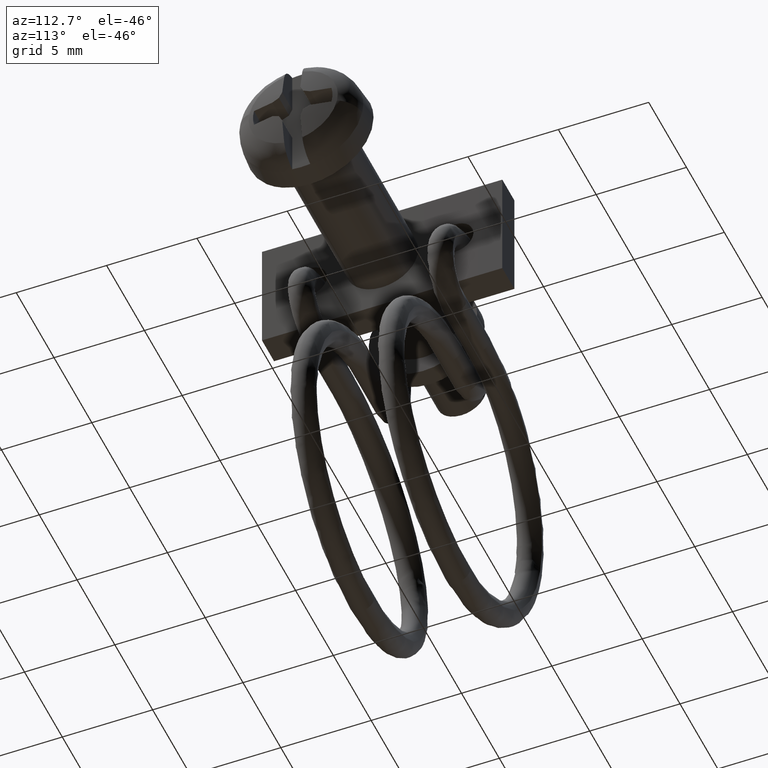
[diagram: clean part render]
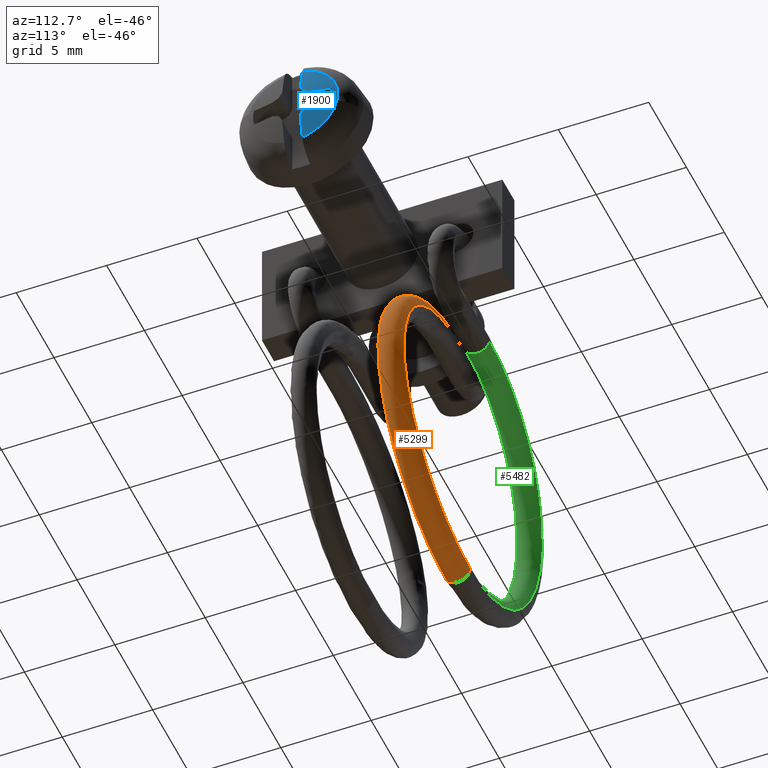
[diagram: same view with three faces highlighted in distinct colors, each labeled with its STEP entity id]
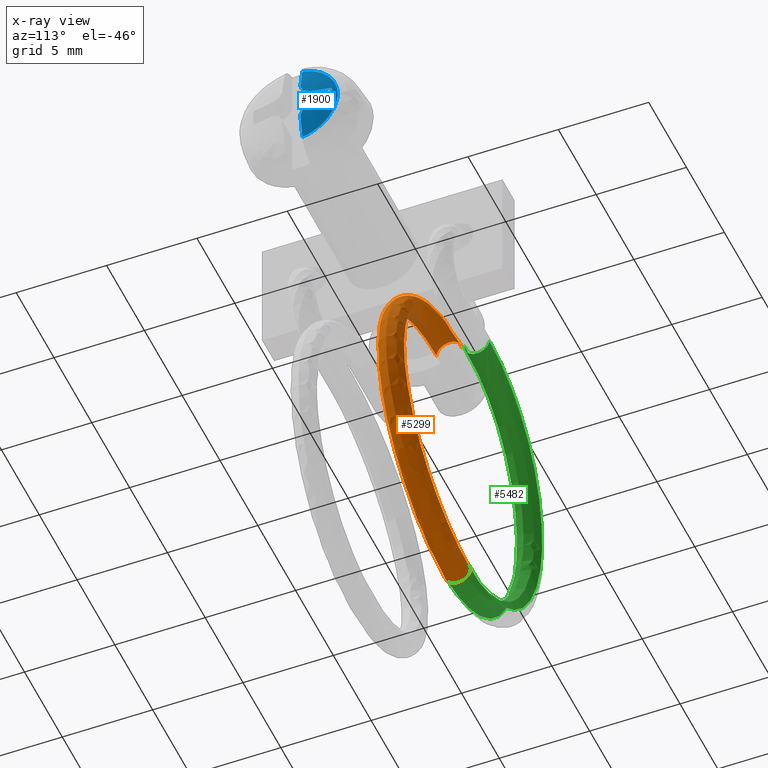
[diagram: x-ray of the same camera — body ghosted, the three highlighted faces saturated]
A machine part, auxiliary view with three faces highlighted in distinct colors.
The next image is the same camera in x-ray (body ghosted, the three faces saturated) — at least one of them is partly hidden behind the body in this view.
Their STEP definitions:

[orange] entity #5299 — the highlighted face is a freeform B-spline surface patch.
#4891=CARTESIAN_POINT('',(-13.150000000000000,2.227171952736012,-3.450939132887910));
#4892=VERTEX_POINT('',#4891);
#4898=CARTESIAN_POINT('',(-13.150000000000000,2.891492417733260,-4.130448840946523));
#4899=VERTEX_POINT('',#4898);
#4900=CARTESIAN_POINT('',(-13.150000000000000,2.891492417733260,-4.130448840946523));
#4901=CARTESIAN_POINT('',(-13.150000000000000,2.886374261863371,-3.947254674042755));
#4902=CARTESIAN_POINT('',(-13.150000000000000,2.805876010664394,-3.767293357503350));
#4903=CARTESIAN_POINT('',(-13.150000000000000,2.552891667518433,-3.528045533171063));
#4904=CARTESIAN_POINT('',(-13.150000000000000,2.391741750787533,-3.459743892525836));
#4905=CARTESIAN_POINT('',(-13.150000000000000,2.227171952736012,-3.450939132887910));
#4906=B_SPLINE_CURVE_WITH_KNOTS('',3,(#4900,#4901,#4902,#4903,#4904,#4905),.UNSPECIFIED.,.F.,.U.,(4,2,4),(0.0,0.125000000000000,0.237495099721431),.UNSPECIFIED.);
#4907=EDGE_CURVE('',#4899,#4892,#4906,.T.);
#4952=CARTESIAN_POINT('',(-13.150000000000000,1.492038592585606,-4.169551159031253));
#4953=VERTEX_POINT('',#4952);
#4963=CARTESIAN_POINT('',(-13.150000000000000,2.227171952736012,-3.450939132887910));
#4964=CARTESIAN_POINT('',(-13.150000000000000,2.208878394085318,-3.449961529167624));
#4965=CARTESIAN_POINT('',(-13.150000000000000,2.190542577870351,-3.449719095212407));
#4966=CARTESIAN_POINT('',(-13.150000000000000,1.989028180289544,-3.455355818465185));
#4967=CARTESIAN_POINT('',(-13.150000000000000,1.809074819739752,-3.535862254391557));
#4968=CARTESIAN_POINT('',(-13.150000000000000,1.557245563047675,-3.802183264355214));
#4969=CARTESIAN_POINT('',(-13.150000000000000,1.486920389340897,-3.986357878164590));
#4970=CARTESIAN_POINT('',(-13.150000000000000,1.492038592585606,-4.169551159031253));
#4971=B_SPLINE_CURVE_WITH_KNOTS('',3,(#4963,#4964,#4965,#4966,#4967,#4968,#4969,#4970),.UNSPECIFIED.,.F.,.U.,(4,2,2,4),(0.237495099721431,0.250000000000000,0.375000000000000,0.500000000000000),.UNSPECIFIED.);
#4972=EDGE_CURVE('',#4892,#4953,#4971,.T.);
#5105=CARTESIAN_POINT('',(-13.150000000000000,1.950273087444880,-20.569551159053230));
#5106=VERTEX_POINT('',#5105);
#5107=CARTESIAN_POINT('',(-13.150000000000000,1.950273087444880,-20.569551159053230));
#5108=CARTESIAN_POINT('',(-10.998757554054830,1.950273087444880,-20.569551159053230));
#5109=CARTESIAN_POINT('',(-8.871056766925172,1.925600556636071,-19.686532728319069));
#5110=CARTESIAN_POINT('',(-5.834784287587045,1.840798670829262,-16.651512573826128));
#5111=CARTESIAN_POINT('',(-4.950434494428650,1.781190440886435,-14.518161675678490));
#5112=CARTESIAN_POINT('',(-4.949565841133940,1.661213939582098,-10.224258349555040));
#5113=CARTESIAN_POINT('',(-5.833094312167060,1.601585964081216,-8.090200767047410));
#5114=CARTESIAN_POINT('',(-8.869227590561900,1.516736486775311,-5.053477334872945));
#5115=CARTESIAN_POINT('',(-10.997641019781749,1.492038592585606,-4.169551159031253));
#5116=CARTESIAN_POINT('',(-13.150000000000000,1.492038592585606,-4.169551159031253));
#5117=B_SPLINE_CURVE_WITH_KNOTS('',3,(#5107,#5108,#5109,#5110,#5111,#5112,#5113,#5114,#5115,#5116),.UNSPECIFIED.,.F.,.U.,(4,2,2,2,4),(0.257365743412340,0.300619619535867,0.343873495659394,0.387127371782920,0.430381247906447),.UNSPECIFIED.);
#5118=EDGE_CURVE('',#5106,#4953,#5117,.T.);
#5122=CARTESIAN_POINT('',(-13.150000000000000,3.349726912581044,-20.530448840968511));
#5123=VERTEX_POINT('',#5122);
#5124=CARTESIAN_POINT('',(-13.150000000000000,3.349726912581044,-20.530448840968511));
#5125=CARTESIAN_POINT('',(-10.998757554054830,3.349726912581044,-20.530448840968511));
#5126=CARTESIAN_POINT('',(-8.871056766925172,3.325054381772621,-19.647430410234339));
#5127=CARTESIAN_POINT('',(-5.834784287587046,3.240252495968404,-16.612410255741430));
#5128=CARTESIAN_POINT('',(-4.950434494428650,3.180644266026603,-14.479059357592851));
#5129=CARTESIAN_POINT('',(-4.949565841133940,3.060667764725743,-10.185156031471230));
#5130=CARTESIAN_POINT('',(-5.833094312167060,3.001039789226474,-8.051098448962673));
#5131=CARTESIAN_POINT('',(-8.869227590561900,2.916190311921997,-5.014375016788211));
#5132=CARTESIAN_POINT('',(-10.997641019781749,2.891492417733260,-4.130448840946523));
#5133=CARTESIAN_POINT('',(-13.150000000000000,2.891492417733260,-4.130448840946523));
#5134=B_SPLINE_CURVE_WITH_KNOTS('',3,(#5124,#5125,#5126,#5127,#5128,#5129,#5130,#5131,#5132,#5133),.UNSPECIFIED.,.F.,.U.,(4,2,2,2,4),(0.257365743412340,0.300619619535867,0.343873495659394,0.387127371782920,0.430381247906447),.UNSPECIFIED.);
#5135=EDGE_CURVE('',#5123,#4899,#5134,.T.);
#5153=CARTESIAN_POINT('',(-13.407456462064900,3.349112684961753,-20.508465918584580));
#5154=CARTESIAN_POINT('',(-13.413459367899140,3.360367985171550,-20.698822007266440));
#5155=CARTESIAN_POINT('',(-13.419493968865600,3.289557823139928,-20.892477831455409));
#5156=CARTESIAN_POINT('',(-13.427819832349140,3.032917784529797,-21.164103428817938));
#5157=CARTESIAN_POINT('',(-13.432571933917171,2.671658248021521,-21.325138648614221));
#5158=CARTESIAN_POINT('',(-13.427819832349140,2.301970355717410,-21.184526924292420));
#5159=CARTESIAN_POINT('',(-13.419493968865600,2.030563515777680,-20.927655552212428));
#5160=CARTESIAN_POINT('',(-13.413459367899140,1.949050349337072,-20.738255813601121));
#5161=CARTESIAN_POINT('',(-13.407456462064911,1.949658859814104,-20.547568236669491));
#5162=CARTESIAN_POINT('',(-13.321637641376601,3.349112684961753,-20.508465918584580));
#5163=CARTESIAN_POINT('',(-13.325639578599430,3.360367985171550,-20.698822007266440));
#5164=CARTESIAN_POINT('',(-13.329662645910400,3.289557823139928,-20.892477831455409));
#5165=CARTESIAN_POINT('',(-13.335213221566089,3.032917784529797,-21.164103428817938));
#5166=CARTESIAN_POINT('',(-13.338381289278111,2.671658248021521,-21.325138648614221));
#5167=CARTESIAN_POINT('',(-13.335213221566089,2.301970355717410,-21.184526924292420));
#5168=CARTESIAN_POINT('',(-13.329662645910400,2.030563515777680,-20.927655552212428));
#5169=CARTESIAN_POINT('',(-13.325639578599430,1.949050349337072,-20.738255813601121));
#5170=CARTESIAN_POINT('',(-13.321637641376610,1.949658859814104,-20.547568236669491));
#5171=CARTESIAN_POINT('',(-13.235818820688300,3.349112684961753,-20.508465918584580));
#5172=CARTESIAN_POINT('',(-13.237819789299710,3.360367985171550,-20.698822007266440));
#5173=CARTESIAN_POINT('',(-13.239831322955199,3.289557823139928,-20.892477831455409));
#5174=CARTESIAN_POINT('',(-13.242606610783049,3.032917784529797,-21.164103428817938));
#5175=CARTESIAN_POINT('',(-13.244190644639049,2.671658248021521,-21.325138648614221));
#5176=CARTESIAN_POINT('',(-13.242606610783049,2.301970355717410,-21.184526924292420));
#5177=CARTESIAN_POINT('',(-13.239831322955199,2.030563515777680,-20.927655552212428));
#5178=CARTESIAN_POINT('',(-13.237819789299721,1.949050349337072,-20.738255813601121));
#5179=CARTESIAN_POINT('',(-13.235818820688300,1.949658859814104,-20.547568236669491));
#5180=CARTESIAN_POINT('',(-11.004529482792520,3.349112684961753,-20.508465918584580));
#5181=CARTESIAN_POINT('',(-10.954505267507219,3.360367985171550,-20.698822007266440));
#5182=CARTESIAN_POINT('',(-10.904216926120011,3.289557823139928,-20.892477831455409));
#5183=CARTESIAN_POINT('',(-10.834834730423861,3.032917784529797,-21.164103428817938));
#5184=CARTESIAN_POINT('',(-10.795233884023650,2.671658248021521,-21.325138648614221));
#5185=CARTESIAN_POINT('',(-10.834834730423880,2.301970355717410,-21.184526924292420));
#5186=CARTESIAN_POINT('',(-10.904216926120000,2.030563515777680,-20.927655552212428));
#5187=CARTESIAN_POINT('',(-10.954505267507180,1.949050349337072,-20.738255813601121));
#5188=CARTESIAN_POINT('',(-11.004529482792460,1.949658859814104,-20.547568236669491));
#5189=CARTESIAN_POINT('',(-8.882536251944119,3.324506359896877,-19.627816960743989));
#5190=CARTESIAN_POINT('',(-8.783045725284772,3.335187867431717,-19.797637275764981));
#5191=CARTESIAN_POINT('',(-8.683029892135149,3.263800883119729,-19.970648898134289));
#5192=CARTESIAN_POINT('',(-8.545039297949831,3.006365010024064,-20.213791948414261));
#5193=CARTESIAN_POINT('',(-8.466279260603969,2.644651239991649,-20.358570361105940));
#5194=CARTESIAN_POINT('',(-8.545039297949831,2.275417581211496,-20.234215443891760));
#5195=CARTESIAN_POINT('',(-8.683029892135126,2.004806575757965,-20.005826618891231));
#5196=CARTESIAN_POINT('',(-8.783045725284710,1.923870231597455,-19.837071082099641));
#5197=CARTESIAN_POINT('',(-8.882536251944021,1.925052534749458,-19.666919278828900));
#5198=CARTESIAN_POINT('',(-5.854405135316153,3.239931859119076,-16.600934811017780));
#5199=CARTESIAN_POINT('',(-5.684354957032952,3.248642663576313,-16.700224577076970));
#5200=CARTESIAN_POINT('',(-5.513406919773905,3.175274570944037,-16.802333251648790));
#5201=CARTESIAN_POINT('',(-5.277552050673074,2.915105387473203,-16.947652391599259));
#5202=CARTESIAN_POINT('',(-5.142934626854648,2.551831542797076,-17.036596456470839));
#5203=CARTESIAN_POINT('',(-5.277552050673074,2.184157958661003,-16.968075887070750));
#5204=CARTESIAN_POINT('',(-5.513406919773866,1.916280263581304,-16.837510972405870));
#5205=CARTESIAN_POINT('',(-5.684354957032840,1.837325027741617,-16.739658383411541));
#5206=CARTESIAN_POINT('',(-5.854405135315984,1.840478033971192,-16.640037129102581));
#5207=CARTESIAN_POINT('',(-4.972424831887433,3.180483385417947,-14.473301514720241));
#5208=CARTESIAN_POINT('',(-4.781838734028359,3.187809612710526,-14.523037906350520));
#5209=CARTESIAN_POINT('',(-4.590246348261257,3.113049632395119,-14.575331566422401));
#5210=CARTESIAN_POINT('',(-4.325908729698472,2.850960078895529,-14.651921553849320));
#5211=CARTESIAN_POINT('',(-4.175034383269749,2.486590156503425,-14.701637505733521));
#5212=CARTESIAN_POINT('',(-4.325908729698472,2.120012650082770,-14.672345049323811));
#5213=CARTESIAN_POINT('',(-4.590246348261213,1.854055325032878,-14.610509287181300));
#5214=CARTESIAN_POINT('',(-4.781838734028232,1.776491976876554,-14.562471712684930));
#5215=CARTESIAN_POINT('',(-4.972424831887245,1.781029560270500,-14.512403832806051));
#5216=CARTESIAN_POINT('',(-4.971558506408358,3.060828396938796,-10.190904983557751));
#5217=CARTESIAN_POINT('',(-4.780952233811572,3.065368133330045,-10.140914158439919));
#5218=CARTESIAN_POINT('',(-4.589339566779714,2.987806949537919,-10.092954045554301));
#5219=CARTESIAN_POINT('',(-4.324973966418311,2.721852610634513,-10.031225156222661));
#5220=CARTESIAN_POINT('',(-4.174083648988911,2.355276808598827,-10.001993698946810));
#5221=CARTESIAN_POINT('',(-4.324973966418311,1.990905181822503,-10.051648651697130));
#5222=CARTESIAN_POINT('',(-4.589339566779670,1.728812642175660,-10.128131766309380));
#5223=CARTESIAN_POINT('',(-4.780952233811444,1.654050497495062,-10.180347964774580));
#5224=CARTESIAN_POINT('',(-4.971558506408170,1.661374571790935,-10.230007301641400));
#5225=CARTESIAN_POINT('',(-5.852719689894633,3.001360230520279,-8.062566894021320));
#5226=CARTESIAN_POINT('',(-5.682630250971067,3.004514931791820,-7.963006304486189));
#5227=CARTESIAN_POINT('',(-5.511642745776598,2.925561399944218,-7.865214700566357));
#5228=CARTESIAN_POINT('',(-5.275733423254031,2.657686055840975,-7.734733926255739));
#5229=CARTESIAN_POINT('',(-5.141084919395550,2.290013813556902,-7.666261381131901));
#5230=CARTESIAN_POINT('',(-5.275733423254031,1.926738627028403,-7.755157421730218));
#5231=CARTESIAN_POINT('',(-5.511642745776559,1.666567092581728,-7.900392421323319));
#5232=CARTESIAN_POINT('',(-5.682630250970953,1.593197295957356,-8.002440110820661));
#5233=CARTESIAN_POINT('',(-5.852719689894466,1.601906405372229,-8.101669212105961));
#5234=CARTESIAN_POINT('',(-8.880711981720346,2.916738265771655,-5.033986030834919));
#5235=CARTESIAN_POINT('',(-8.781178934477378,2.917921158692150,-4.863855335093149));
#5236=CARTESIAN_POINT('',(-8.681120356237187,2.836985407413621,-4.695121017284763));
#5237=CARTESIAN_POINT('',(-8.543070787189819,2.566375219951981,-4.466761467840396));
#5238=CARTESIAN_POINT('',(-8.464277089124520,2.197142028052337,-4.342423260047086));
#5239=CARTESIAN_POINT('',(-8.543070787189819,1.835427791139784,-4.487184963314870));
#5240=CARTESIAN_POINT('',(-8.681120356237164,1.577991100051604,-4.730298738041707));
#5241=CARTESIAN_POINT('',(-8.781178934477312,1.506603522857647,-4.903289141427578));
#5242=CARTESIAN_POINT('',(-8.880711981720246,1.517284440624388,-5.073088348919487));
#5243=CARTESIAN_POINT('',(-11.003415944649941,2.892106645375531,-4.152431763330446));
#5244=CARTESIAN_POINT('',(-10.953365762467900,2.892715155852611,-3.961744186398767));
#5245=CARTESIAN_POINT('',(-10.903051317079470,2.811201989411995,-3.772344447787390));
#5246=CARTESIAN_POINT('',(-10.833633106015650,2.539795149472221,-3.515473075707348));
#5247=CARTESIAN_POINT('',(-10.794011703348790,2.170107257168108,-3.374861351385534));
#5248=CARTESIAN_POINT('',(-10.833633106015650,1.808847720659834,-3.535896571181823));
#5249=CARTESIAN_POINT('',(-10.903051317079459,1.552207682049744,-3.807522168544334));
#5250=CARTESIAN_POINT('',(-10.953365762467870,1.481397520018126,-4.001177992733170));
#5251=CARTESIAN_POINT('',(-11.003415944649900,1.492652820227872,-4.191534081414988));
#5252=CARTESIAN_POINT('',(-13.235863362213999,2.892106645375531,-4.152431763330446));
#5253=CARTESIAN_POINT('',(-13.237865369501289,2.892715155852611,-3.961744186398767));
#5254=CARTESIAN_POINT('',(-13.239877947316820,2.811201989411995,-3.772344447787390));
#5255=CARTESIAN_POINT('',(-13.242654675759370,2.539795149472221,-3.515473075707353));
#5256=CARTESIAN_POINT('',(-13.244239531866050,2.170107257168108,-3.374861351385532));
#5257=CARTESIAN_POINT('',(-13.242654675759370,1.808847720659834,-3.535896571181823));
#5258=CARTESIAN_POINT('',(-13.239877947316820,1.552207682049744,-3.807522168544334));
#5259=CARTESIAN_POINT('',(-13.237865369501280,1.481397520018126,-4.001177992733170));
#5260=CARTESIAN_POINT('',(-13.235863362214010,1.492652820227872,-4.191534081414988));
#5261=CARTESIAN_POINT('',(-13.321726724428011,2.892106645375531,-4.152431763330446));
#5262=CARTESIAN_POINT('',(-13.325730739002569,2.892715155852611,-3.961744186398767));
#5263=CARTESIAN_POINT('',(-13.329755894633641,2.811201989411995,-3.772344447787390));
#5264=CARTESIAN_POINT('',(-13.335309351518751,2.539795149472221,-3.515473075707353));
#5265=CARTESIAN_POINT('',(-13.338479063732100,2.170107257168108,-3.374861351385532));
#5266=CARTESIAN_POINT('',(-13.335309351518751,1.808847720659834,-3.535896571181823));
#5267=CARTESIAN_POINT('',(-13.329755894633641,1.552207682049744,-3.807522168544334));
#5268=CARTESIAN_POINT('',(-13.325730739002580,1.481397520018126,-4.001177992733170));
#5269=CARTESIAN_POINT('',(-13.321726724428011,1.492652820227872,-4.191534081414988));
#5270=CARTESIAN_POINT('',(-13.407590086642010,2.892106645375531,-4.152431763330446));
#5271=CARTESIAN_POINT('',(-13.413596108503860,2.892715155852611,-3.961744186398767));
#5272=CARTESIAN_POINT('',(-13.419633841950469,2.811201989411995,-3.772344447787390));
#5273=CARTESIAN_POINT('',(-13.427964027278120,2.539795149472221,-3.515473075707353));
#5274=CARTESIAN_POINT('',(-13.432718595598150,2.170107257168108,-3.374861351385532));
#5275=CARTESIAN_POINT('',(-13.427964027278120,1.808847720659834,-3.535896571181823));
#5276=CARTESIAN_POINT('',(-13.419633841950469,1.552207682049744,-3.807522168544334));
#5277=CARTESIAN_POINT('',(-13.413596108503860,1.481397520018126,-4.001177992733170));
#5278=CARTESIAN_POINT('',(-13.407590086642021,1.492652820227872,-4.191534081414988));
#5279=B_SPLINE_SURFACE_WITH_KNOTS('',3,3,((#5153,#5162,#5171,#5180,#5189,#5198,#5207,#5216,#5225,#5234,#5243,#5252,#5261,#5270),(#5154,#5163,#5172,#5181,#5190,#5199,#5208,#5217,#5226,#5235,#5244,#5253,#5262,#5271),(#5155,#5164,#5173,#5182,#5191,#5200,#5209,#5218,#5227,#5236,#5245,#5254,#5263,#5272),(#5156,#5165,#5174,#5183,#5192,#5201,#5210,#5219,#5228,#5237,#5246,#5255,#5264,#5273),(#5157,#5166,#5175,#5184,#5193,#5202,#5211,#5220,#5229,#5238,#5247,#5256,#5265,#5274),(#5158,#5167,#5176,#5185,#5194,#5203,#5212,#5221,#5230,#5239,#5248,#5257,#5266,#5275),(#5159,#5168,#5177,#5186,#5195,#5204,#5213,#5222,#5231,#5240,#5249,#5258,#5267,#5276),(#5160,#5169,#5178,#5187,#5196,#5205,#5214,#5223,#5232,#5241,#5250,#5259,#5268,#5277),(#5161,#5170,#5179,#5188,#5197,#5206,#5215,#5224,#5233,#5242,#5251,#5260,#5269,#5278)),.UNSPECIFIED.,.F.,.F.,.U.,(4,2,1,2,4),(4,2,2,2,2,2,4),(0.0,0.572349326213570,1.122684876804601,1.673020427395633,2.245369753609015),(0.0,0.280341311438134,7.288874097391388,14.297406883344630,21.305939669297882,28.314472455251121,28.594813766689260),.UNSPECIFIED.);
#5280=ORIENTED_EDGE('',*,*,#5118,.F.);
#5281=CARTESIAN_POINT('',(-13.150000000000000,3.349726912581044,-20.530448840968511));
#5282=CARTESIAN_POINT('',(-13.150000000000000,3.354845394049101,-20.713636918306939));
#5283=CARTESIAN_POINT('',(-13.150000000000000,3.284520620769510,-20.897804043057690));
#5284=CARTESIAN_POINT('',(-13.150000000000000,3.032692183245477,-21.164109732405588));
#5285=CARTESIAN_POINT('',(-13.150000000000000,2.852739236392242,-21.244608431116639));
#5286=CARTESIAN_POINT('',(-13.150000000000000,2.486363081718415,-21.254845394052751));
#5287=CARTESIAN_POINT('',(-13.150000000000000,2.302195956969154,-21.184520620772549));
#5288=CARTESIAN_POINT('',(-13.150000000000000,2.035890267623361,-20.932692183246399));
#5289=CARTESIAN_POINT('',(-13.150000000000000,1.955391568912935,-20.752739236391651));
#5290=CARTESIAN_POINT('',(-13.150000000000000,1.950273087444880,-20.569551159053230));
#5291=B_SPLINE_CURVE_WITH_KNOTS('',3,(#5281,#5282,#5283,#5284,#5285,#5286,#5287,#5288,#5289,#5290),.UNSPECIFIED.,.F.,.U.,(4,2,2,2,4),(0.0,0.125000000000000,0.250000000000000,0.375000000000000,0.500000000000000),.UNSPECIFIED.);
#5292=EDGE_CURVE('',#5123,#5106,#5291,.T.);
#5293=ORIENTED_EDGE('',*,*,#5292,.F.);
#5294=ORIENTED_EDGE('',*,*,#5135,.T.);
#5295=ORIENTED_EDGE('',*,*,#4907,.T.);
#5296=ORIENTED_EDGE('',*,*,#4972,.T.);
#5297=EDGE_LOOP('',(#5280,#5293,#5294,#5295,#5296));
#5298=FACE_OUTER_BOUND('',#5297,.T.);
#5299=ADVANCED_FACE('',(#5298),#5279,.F.);

[blue] entity #1900 — the highlighted face is a freeform B-spline surface patch.
#1253=CARTESIAN_POINT('',(2.256508772695955,0.500999999999920,2.411165328157830));
#1254=VERTEX_POINT('',#1253);
#1278=CARTESIAN_POINT('',(2.256508772548493,2.419044500105618,-0.461457418157025));
#1279=VERTEX_POINT('',#1278);
#1280=CARTESIAN_POINT('',(2.256508772695955,0.500999999999920,2.411165328157830));
#1281=CARTESIAN_POINT('',(2.256508772691706,0.637645352537269,2.382782687184147));
#1282=CARTESIAN_POINT('',(2.256508772682502,0.906091230957764,2.302699490948710));
#1283=CARTESIAN_POINT('',(2.256508772668434,1.246772134804768,2.133950476584994));
#1284=CARTESIAN_POINT('',(2.256508772651380,1.599871326141201,1.889496030997040));
#1285=CARTESIAN_POINT('',(2.256508772632488,1.920366807436065,1.571360582312098));
#1286=CARTESIAN_POINT('',(2.256508772612825,2.171515438091608,1.185094313272269));
#1287=CARTESIAN_POINT('',(2.256508772597700,2.315737715116916,0.855598895952190));
#1288=CARTESIAN_POINT('',(2.256508772583846,2.413199593190964,0.530442383168246));
#1289=CARTESIAN_POINT('',(2.256508772566847,2.479665032065522,0.095271850295473));
#1290=CARTESIAN_POINT('',(2.256508772554835,2.458336214755378,-0.255826488186732));
#1291=CARTESIAN_POINT('',(2.256508772548493,2.419044500105618,-0.461457418157025));
#1292=B_SPLINE_CURVE_WITH_KNOTS('',3,(#1280,#1281,#1282,#1283,#1284,#1285,#1286,#1287,#1288,#1289,#1290,#1291),.UNSPECIFIED.,.F.,.U.,(4,1,1,1,1,1,1,1,1,4),(0.000000010237085,0.418686758017956,0.837384758448813,1.136453466059990,1.704686053450429,2.183177587573629,2.512153728120897,2.781315536685892,3.200011040748690,3.828048380252850),.UNSPECIFIED.);
#1293=EDGE_CURVE('',#1254,#1279,#1292,.T.);
#1344=CARTESIAN_POINT('',(2.256508772697755,0.500999999999920,-2.411165328158100));
#1345=VERTEX_POINT('',#1344);
#1346=CARTESIAN_POINT('',(2.256508772548493,2.419044500105618,-0.461457418157025));
#1347=CARTESIAN_POINT('',(2.256508772556717,2.385119262346324,-0.639483240486898));
#1348=CARTESIAN_POINT('',(2.256508772569973,2.304536275237548,-0.900836110271518));
#1349=CARTESIAN_POINT('',(2.256508772590386,2.128372703887221,-1.252431192861815));
#1350=CARTESIAN_POINT('',(2.256508772609894,1.925208929119595,-1.553777627583928));
#1351=CARTESIAN_POINT('',(2.256508772631410,1.653890127380906,-1.839912424789340));
#1352=CARTESIAN_POINT('',(2.256508772652646,1.339595679050892,-2.077055231453961));
#1353=CARTESIAN_POINT('',(2.256508772674859,0.967335396458926,-2.280050564493177));
#1354=CARTESIAN_POINT('',(2.256508772689421,0.678446680667153,-2.374332242345401));
#1355=CARTESIAN_POINT('',(2.256508772697755,0.500999999999920,-2.411165328158100));
#1356=B_SPLINE_CURVE_WITH_KNOTS('',3,(#1346,#1347,#1348,#1349,#1350,#1351,#1352,#1353,#1354,#1355),.UNSPECIFIED.,.F.,.U.,(4,1,1,1,1,1,1,4),(0.000000012253588,0.543679187892657,0.815522549189006,1.177980207564881,1.631037112215507,1.993495088707032,2.355953252657465,2.899632223035812),.UNSPECIFIED.);
#1357=EDGE_CURVE('',#1279,#1345,#1356,.T.);
#1650=CARTESIAN_POINT('',(2.525813907785615,0.500999999999920,1.038635999999896));
#1651=VERTEX_POINT('',#1650);
#1657=CARTESIAN_POINT('',(2.256508772695955,0.500999999999920,2.411165328157830));
#1658=CARTESIAN_POINT('',(2.381751222702705,0.500999999999917,1.961577706396167));
#1659=CARTESIAN_POINT('',(2.471891080169251,0.500999999999928,1.502217308528807));
#1660=CARTESIAN_POINT('',(2.525813907785615,0.500999999999920,1.038635999999896));
#1661=B_SPLINE_CURVE_WITH_KNOTS('',3,(#1657,#1658,#1659,#1660),.UNSPECIFIED.,.F.,.U.,(4,4),(1.223133E-010,1.400117306514207),.UNSPECIFIED.);
#1662=EDGE_CURVE('',#1254,#1651,#1661,.T.);
#1672=CARTESIAN_POINT('',(2.525813907785500,0.500999999999920,-1.038636000000096));
#1673=VERTEX_POINT('',#1672);
#1681=CARTESIAN_POINT('',(2.525813907785500,0.500999999999920,-1.038636000000096));
#1682=CARTESIAN_POINT('',(2.471882624892856,0.500999999999922,-1.502215591892464));
#1683=CARTESIAN_POINT('',(2.381759716289524,0.500999999999915,-1.961579507001460));
#1684=CARTESIAN_POINT('',(2.256508772697755,0.500999999999920,-2.411165328158100));
#1685=B_SPLINE_CURVE_WITH_KNOTS('',3,(#1681,#1682,#1683,#1684),.UNSPECIFIED.,.F.,.U.,(4,4),(1.223761E-010,1.400117306505843),.UNSPECIFIED.);
#1686=EDGE_CURVE('',#1673,#1345,#1685,.T.);
#1698=CARTESIAN_POINT('',(2.549679533002670,0.672000000000224,0.671999999999898));
#1699=VERTEX_POINT('',#1698);
#1705=CARTESIAN_POINT('',(2.525813907785615,0.500999999999920,1.038635999999896));
#1706=CARTESIAN_POINT('',(2.536819712523476,0.557914068220942,0.916608243764386));
#1707=CARTESIAN_POINT('',(2.544777656279305,0.614933686261053,0.794354181309892));
#1708=CARTESIAN_POINT('',(2.549679533002670,0.672000000000224,0.671999999999898));
#1709=B_SPLINE_CURVE_WITH_KNOTS('',3,(#1705,#1706,#1707,#1708),.UNSPECIFIED.,.F.,.U.,(4,4),(6.489975E-012,0.405291258091682),.UNSPECIFIED.);
#1710=EDGE_CURVE('',#1651,#1699,#1709,.T.);
#1722=CARTESIAN_POINT('',(2.525716980240510,1.039950000000118,0.499999999999901));
#1723=VERTEX_POINT('',#1722);
#1729=CARTESIAN_POINT('',(2.549679533002670,0.672000000000224,0.671999999999898));
#1730=CARTESIAN_POINT('',(2.544769777040201,0.794793188456058,0.614599732533098));
#1731=CARTESIAN_POINT('',(2.536779489219316,0.917485739534599,0.557246508493106));
#1732=CARTESIAN_POINT('',(2.525716980240510,1.039950000000118,0.499999999999901));
#1733=B_SPLINE_CURVE_WITH_KNOTS('',3,(#1729,#1730,#1731,#1732),.UNSPECIFIED.,.F.,.U.,(4,4),(6.620926E-012,0.406908273705924),.UNSPECIFIED.);
#1734=EDGE_CURVE('',#1699,#1723,#1733,.T.);
#1746=CARTESIAN_POINT('',(2.326710178449875,2.143455384278140,0.500000015608943));
#1747=VERTEX_POINT('',#1746);
#1753=CARTESIAN_POINT('',(2.525716980240510,1.039950000000118,0.499999999999901));
#1754=CARTESIAN_POINT('',(2.482440251097514,1.411449911341539,0.499999994789761));
#1755=CARTESIAN_POINT('',(2.415930693803787,1.780240958464348,0.500000000006988));
#1756=CARTESIAN_POINT('',(2.326710178449875,2.143455384278140,0.500000015608943));
#1757=B_SPLINE_CURVE_WITH_KNOTS('',3,(#1753,#1754,#1755,#1756),.UNSPECIFIED.,.F.,.U.,(4,4),(6.468737E-011,1.122035763606711),.UNSPECIFIED.);
#1758=EDGE_CURVE('',#1723,#1747,#1757,.T.);
#1779=CARTESIAN_POINT('',(2.326710177555480,2.143456000000215,-0.500000000000099));
#1780=VERTEX_POINT('',#1779);
#1786=CARTESIAN_POINT('',(2.326710178449875,2.143455384278140,0.500000015608943));
#1787=CARTESIAN_POINT('',(2.326710178175203,2.179287929677772,0.346498625197413));
#1788=CARTESIAN_POINT('',(2.326710177717651,2.220314034104978,0.010785818852085));
#1789=CARTESIAN_POINT('',(2.326710177555306,2.184085176525472,-0.326034225023024));
#1790=CARTESIAN_POINT('',(2.326710177555480,2.143456000000215,-0.500000000000099));
#1791=B_SPLINE_CURVE_WITH_KNOTS('',3,(#1786,#1787,#1788,#1789,#1790),.UNSPECIFIED.,.F.,.U.,(4,1,4),(8.513151E-010,0.472882350751732,1.008815637395133),.UNSPECIFIED.);
#1792=EDGE_CURVE('',#1747,#1780,#1791,.T.);
#1804=CARTESIAN_POINT('',(2.525716980240735,1.039950000000204,-0.500000000000000));
#1805=VERTEX_POINT('',#1804);
#1811=CARTESIAN_POINT('',(2.326710177555480,2.143456000000215,-0.500000000000099));
#1812=CARTESIAN_POINT('',(2.415932052985548,1.780241598370839,-0.500000000000131));
#1813=CARTESIAN_POINT('',(2.482438692339133,1.411449862474165,-0.500000000000099));
#1814=CARTESIAN_POINT('',(2.525716980240735,1.039950000000204,-0.500000000000000));
#1815=B_SPLINE_CURVE_WITH_KNOTS('',3,(#1811,#1812,#1813,#1814),.UNSPECIFIED.,.F.,.U.,(4,4),(6.467693E-011,1.122036364805997),.UNSPECIFIED.);
#1816=EDGE_CURVE('',#1780,#1805,#1815,.T.);
#1828=CARTESIAN_POINT('',(2.549679533002670,0.672000000000111,-0.672000000000196));
#1829=VERTEX_POINT('',#1828);
#1835=CARTESIAN_POINT('',(2.525716980240735,1.039950000000204,-0.500000000000000));
#1836=CARTESIAN_POINT('',(2.536779489219295,0.917485739534578,-0.557246508493224));
#1837=CARTESIAN_POINT('',(2.544769777040103,0.794793188455977,-0.614599732533278));
#1838=CARTESIAN_POINT('',(2.549679533002670,0.672000000000111,-0.672000000000196));
#1839=B_SPLINE_CURVE_WITH_KNOTS('',3,(#1835,#1836,#1837,#1838),.UNSPECIFIED.,.F.,.U.,(4,4),(6.621259E-012,0.406908273706171),.UNSPECIFIED.);
#1840=EDGE_CURVE('',#1805,#1829,#1839,.T.);
#1853=CARTESIAN_POINT('',(2.549679533002670,0.672000000000111,-0.672000000000196));
#1854=CARTESIAN_POINT('',(2.544777674130277,0.614933739529905,-0.794354067098009));
#1855=CARTESIAN_POINT('',(2.536819683587450,0.557914076969680,-0.916608225006784));
#1856=CARTESIAN_POINT('',(2.525813907785500,0.500999999999920,-1.038636000000096));
#1857=B_SPLINE_CURVE_WITH_KNOTS('',3,(#1853,#1854,#1855,#1856),.UNSPECIFIED.,.F.,.U.,(4,4),(6.486811E-012,0.405291258091555),.UNSPECIFIED.);
#1858=EDGE_CURVE('',#1829,#1673,#1857,.T.);
#1863=CARTESIAN_POINT('',(2.193392126192473,0.389281925973621,-2.646151221932120));
#1864=CARTESIAN_POINT('',(2.173220022885008,0.828182298111016,-2.647086452099823));
#1865=CARTESIAN_POINT('',(2.018182347930122,1.915876591550703,-2.626506713360609));
#1866=CARTESIAN_POINT('',(1.832861697012636,2.547974280352475,-2.593790999230819));
#1867=CARTESIAN_POINT('',(2.414009403735346,0.400951952236128,-1.927970416119828));
#1868=CARTESIAN_POINT('',(2.394229178449664,0.842954520803316,-1.927176586213122));
#1869=CARTESIAN_POINT('',(2.238105642385287,1.938266865356083,-1.906452710005729));
#1870=CARTESIAN_POINT('',(2.050303007340569,2.574646436600288,-1.877408750818262));
#1871=CARTESIAN_POINT('',(2.770782572550683,0.400951952236128,0.759783946573726));
#1872=CARTESIAN_POINT('',(2.751864552405664,0.842954520803316,0.767073207838256));
#1873=CARTESIAN_POINT('',(2.595741016341287,1.938266865356083,0.787797084045649));
#1874=CARTESIAN_POINT('',(2.406001508787360,2.574646436600288,0.802249594123049));
#1875=CARTESIAN_POINT('',(2.200045757845424,0.324625418122466,2.633226210627630));
#1876=CARTESIAN_POINT('',(2.180671676992224,0.746347384063931,2.644505487940501));
#1877=CARTESIAN_POINT('',(2.031649437386034,1.791839324409517,2.664286736326226));
#1878=CARTESIAN_POINT('',(1.853412382161304,2.400179904698908,2.668382485676940));
#1886=(BOUNDED_SURFACE()B_SPLINE_SURFACE(2,2,((#1863,#1867,#1871,#1875),(#1864,#1868,#1872,#1876),(#1865,#1869,#1873,#1877),(#1866,#1870,#1874,#1878)),.UNSPECIFIED.,.F.,.F.,.U.)B_SPLINE_SURFACE_WITH_KNOTS((3,1,3),(3,1,3),(0.0,0.882804736435470,2.207954438602744),(0.0,1.502878804782837,5.422993034576980),.UNSPECIFIED.)GEOMETRIC_REPRESENTATION_ITEM()RATIONAL_B_SPLINE_SURFACE(((1.009420529120110,1.002416675961160,1.002416675961160,1.050069271150667),(1.007003853158950,1.0,1.0,1.047652595189507),(1.007003853158950,1.0,1.0,1.047652595189507),(1.012449117902350,1.005445264743400,1.005445264743400,1.053097859932907)))REPRESENTATION_ITEM('')SURFACE());
#1887=ORIENTED_EDGE('',*,*,#1858,.T.);
#1888=ORIENTED_EDGE('',*,*,#1686,.T.);
#1889=ORIENTED_EDGE('',*,*,#1357,.F.);
#1890=ORIENTED_EDGE('',*,*,#1293,.F.);
#1891=ORIENTED_EDGE('',*,*,#1662,.T.);
#1892=ORIENTED_EDGE('',*,*,#1710,.T.);
#1893=ORIENTED_EDGE('',*,*,#1734,.T.);
#1894=ORIENTED_EDGE('',*,*,#1758,.T.);
#1895=ORIENTED_EDGE('',*,*,#1792,.T.);
#1896=ORIENTED_EDGE('',*,*,#1816,.T.);
#1897=ORIENTED_EDGE('',*,*,#1840,.T.);
#1898=EDGE_LOOP('',(#1887,#1888,#1889,#1890,#1891,#1892,#1893,#1894,#1895,#1896,#1897));
#1899=FACE_OUTER_BOUND('',#1898,.T.);
#1900=ADVANCED_FACE('',(#1899),#1886,.T.);

[green] entity #5482 — the highlighted face is a freeform B-spline surface patch.
#5105=CARTESIAN_POINT('',(-13.150000000000000,1.950273087444880,-20.569551159053230));
#5106=VERTEX_POINT('',#5105);
#5122=CARTESIAN_POINT('',(-13.150000000000000,3.349726912581044,-20.530448840968511));
#5123=VERTEX_POINT('',#5122);
#5137=CARTESIAN_POINT('',(-13.150000000000000,1.950273087444880,-20.569551159053230));
#5138=CARTESIAN_POINT('',(-13.150000000000000,1.945154605976825,-20.386363081714801));
#5139=CARTESIAN_POINT('',(-13.150000000000000,2.015479379256410,-20.202195956964051));
#5140=CARTESIAN_POINT('',(-13.150000000000000,2.267307816780444,-19.935890267616148));
#5141=CARTESIAN_POINT('',(-13.150000000000000,2.447260763633680,-19.855391568905102));
#5142=CARTESIAN_POINT('',(-13.150000000000000,2.813636918307506,-19.845154605968990));
#5143=CARTESIAN_POINT('',(-13.150000000000000,2.997804043056767,-19.915479379249192));
#5144=CARTESIAN_POINT('',(-13.150000000000000,3.264109732402560,-20.167307816775342));
#5145=CARTESIAN_POINT('',(-13.150000000000000,3.344608431112986,-20.347260763630089));
#5146=CARTESIAN_POINT('',(-13.150000000000000,3.349726912581044,-20.530448840968511));
#5147=B_SPLINE_CURVE_WITH_KNOTS('',3,(#5137,#5138,#5139,#5140,#5141,#5142,#5143,#5144,#5145,#5146),.UNSPECIFIED.,.F.,.U.,(4,2,2,2,4),(0.500000000000000,0.625000000000000,0.750000000000000,0.875000000000000,1.0),.UNSPECIFIED.);
#5148=EDGE_CURVE('',#5106,#5123,#5147,.T.);
#5300=CARTESIAN_POINT('',(-12.888843482687930,3.041431814402224,-4.017221503689942));
#5301=CARTESIAN_POINT('',(-12.894820235789640,3.005331817593706,-4.204461635594751));
#5302=CARTESIAN_POINT('',(-12.901071196561659,3.050157325316067,-4.405725817159122));
#5303=CARTESIAN_POINT('',(-12.910165200536211,3.268994374797741,-4.708636418350521));
#5304=CARTESIAN_POINT('',(-12.915990331014999,3.606039398832847,-4.915618172393219));
#5305=CARTESIAN_POINT('',(-12.912324910097800,3.990964096704974,-4.824657896989822));
#5306=CARTESIAN_POINT('',(-12.904791110712660,4.293688137400741,-4.605562845186442));
#5307=CARTESIAN_POINT('',(-12.898990215284240,4.399315059073707,-4.428476565816244));
#5308=CARTESIAN_POINT('',(-12.892978409070620,4.423697144487438,-4.239353350223500));
#5309=CARTESIAN_POINT('',(-12.975895655125290,3.041431814402224,-4.017221503689942));
#5310=CARTESIAN_POINT('',(-12.979880157193090,3.005331817593706,-4.204461635594751));
#5311=CARTESIAN_POINT('',(-12.984047464374440,3.050157325316067,-4.405725817159122));
#5312=CARTESIAN_POINT('',(-12.990110133690800,3.268994374797741,-4.708636418350521));
#5313=CARTESIAN_POINT('',(-12.993993554010000,3.606039398832847,-4.915618172393219));
#5314=CARTESIAN_POINT('',(-12.991549940065200,3.990964096704974,-4.824657896989822));
#5315=CARTESIAN_POINT('',(-12.986527407141780,4.293688137400741,-4.605562845186442));
#5316=CARTESIAN_POINT('',(-12.982660143522830,4.399315059073707,-4.428476565816244));
#5317=CARTESIAN_POINT('',(-12.978652272713751,4.423697144487438,-4.239353350223500));
#5318=CARTESIAN_POINT('',(-13.062947827562640,3.041431814402224,-4.017221503689942));
#5319=CARTESIAN_POINT('',(-13.064940078596541,3.005331817593706,-4.204461635594751));
#5320=CARTESIAN_POINT('',(-13.067023732187220,3.050157325316067,-4.405725817159122));
#5321=CARTESIAN_POINT('',(-13.070055066845400,3.268994374797741,-4.708636418350521));
#5322=CARTESIAN_POINT('',(-13.071996777004999,3.606039398832847,-4.915618172393219));
#5323=CARTESIAN_POINT('',(-13.070774970032600,3.990964096704974,-4.824657896989822));
#5324=CARTESIAN_POINT('',(-13.068263703570890,4.293688137400741,-4.605562845186442));
#5325=CARTESIAN_POINT('',(-13.066330071761410,4.399315059073707,-4.428476565816244));
#5326=CARTESIAN_POINT('',(-13.064326136356870,4.423697144487438,-4.239353350223500));
#5327=CARTESIAN_POINT('',(-15.326304310934059,3.041431814402224,-4.017221503689942));
#5328=CARTESIAN_POINT('',(-15.276498035086510,3.005331817593706,-4.204461635594751));
#5329=CARTESIAN_POINT('',(-15.224406695319630,3.050157325316067,-4.405725817159122));
#5330=CARTESIAN_POINT('',(-15.148623328865099,3.268994374797741,-4.708636418350521));
#5331=CARTESIAN_POINT('',(-15.100080574875159,3.606039398832847,-4.915618172393219));
#5332=CARTESIAN_POINT('',(-15.130625749185180,3.990964096704974,-4.824657896989822));
#5333=CARTESIAN_POINT('',(-15.193407410727961,4.293688137400741,-4.605562845186442));
#5334=CARTESIAN_POINT('',(-15.241748205964830,4.399315059073707,-4.428476565816244));
#5335=CARTESIAN_POINT('',(-15.291846591078309,4.423697144487438,-4.239353350223500));
#5336=CARTESIAN_POINT('',(-17.477234213126120,2.982612334572968,-4.911171650284833));
#5337=CARTESIAN_POINT('',(-17.378259785737090,2.947859308246264,-5.077940257062485));
#5338=CARTESIAN_POINT('',(-17.274744507061961,2.994093584156823,-5.257793699668564));
#5339=CARTESIAN_POINT('',(-17.124148720238850,3.214980133543510,-5.529555593912775));
#5340=CARTESIAN_POINT('',(-17.027685148179408,3.553337957133425,-5.716585159380005));
#5341=CARTESIAN_POINT('',(-17.088384148140321,3.937436585449190,-5.638179653284814));
#5342=CARTESIAN_POINT('',(-17.213143104628170,4.238462746842137,-5.444889308612235));
#5343=CARTESIAN_POINT('',(-17.309205346716979,4.342782330772883,-5.287672208123730));
#5344=CARTESIAN_POINT('',(-17.408760250090179,4.365809545845801,-5.119140581285287));
#5345=CARTESIAN_POINT('',(-20.544878010792999,2.780704153793469,-7.979812316241696));
#5346=CARTESIAN_POINT('',(-20.375942091609520,2.750555898575839,-8.076596696384160));
#5347=CARTESIAN_POINT('',(-20.199255555334538,2.801606208055069,-8.183255103511394));
#5348=CARTESIAN_POINT('',(-19.942208979322380,3.029499204931681,-8.348531616089355));
#5349=CARTESIAN_POINT('',(-19.777558749508181,3.372344982443665,-8.467352365728427));
#5350=CARTESIAN_POINT('',(-19.881163707120152,3.753619598450351,-8.431866760076858));
#5351=CARTESIAN_POINT('',(-20.094110319165310,4.048841367198323,-8.326792728618475));
#5352=CARTESIAN_POINT('',(-20.258075533154418,4.148691669023999,-8.237500665932451));
#5353=CARTESIAN_POINT('',(-20.428002246094199,4.167087106425422,-8.139363716833659));
#5354=CARTESIAN_POINT('',(-21.437406242198200,2.638858422113826,-10.135611941852680));
#5355=CARTESIAN_POINT('',(-21.248198548280310,2.611936796173482,-10.183357368859030));
#5356=CARTESIAN_POINT('',(-21.050310187805479,2.666361769569715,-10.238726962969160));
#5357=CARTESIAN_POINT('',(-20.762418837582310,2.899164284870971,-10.329387638634360));
#5358=CARTESIAN_POINT('',(-20.578011102175289,3.245154836181077,-10.400413491000741));
#5359=CARTESIAN_POINT('',(-20.694048326238718,3.624450626184963,-10.395002476266120));
#5360=CARTESIAN_POINT('',(-20.932547856631750,3.915605173608460,-10.351742882956650));
#5361=CARTESIAN_POINT('',(-21.116188376487539,4.012323785249544,-10.310046870200560));
#5362=CARTESIAN_POINT('',(-21.306505756268219,4.027473669487122,-10.261236483223859));
#5363=CARTESIAN_POINT('',(-21.437282891530710,2.353429688714660,-14.473614568411950));
#5364=CARTESIAN_POINT('',(-21.248078001792450,2.332996819248410,-14.422742584724890));
#5365=CARTESIAN_POINT('',(-21.050192574144120,2.394208247008824,-14.374970296423250));
#5366=CARTESIAN_POINT('',(-20.762305490642390,2.636883811464860,-14.315578408511580));
#5367=CARTESIAN_POINT('',(-20.577900488283419,2.989198507750344,-14.290488648443860));
#5368=CARTESIAN_POINT('',(-20.693935992598981,3.364514875601004,-14.345557682616400));
#5369=CARTESIAN_POINT('',(-20.932431988278580,3.647490234642292,-14.426607020156499));
#5370=CARTESIAN_POINT('',(-21.116069786467708,3.737911012473670,-14.480626737515211));
#5371=CARTESIAN_POINT('',(-21.306384345622700,3.746534084272841,-14.531012143348820));
#5372=CARTESIAN_POINT('',(-20.544638014265448,2.211590558763037,-16.629313859640771));
#5373=CARTESIAN_POINT('',(-20.375707558936650,2.194384169643938,-16.529405186286741));
#5374=CARTESIAN_POINT('',(-20.199026737205230,2.258970105559549,-16.430346452275099));
#5375=CARTESIAN_POINT('',(-19.941988474791309,2.506554961833633,-16.296342171459010));
#5376=CARTESIAN_POINT('',(-19.777343570234230,2.862014286765043,-16.223459720165479));
#5377=CARTESIAN_POINT('',(-19.880945176959418,3.235351919949401,-16.308601957116949));
#5378=CARTESIAN_POINT('',(-20.093884901720429,3.514260245395159,-16.451462879667559));
#5379=CARTESIAN_POINT('',(-20.257844812618981,3.601549477589219,-16.553076450090732));
#5380=CARTESIAN_POINT('',(-20.427766029656201,3.606927146027856,-16.652786141302489));
#5381=CARTESIAN_POINT('',(-17.476974397146812,2.009698296588861,-19.697712591484610));
#5382=CARTESIAN_POINT('',(-17.378005904760190,1.997096316794590,-19.527825189965551));
#5383=CARTESIAN_POINT('',(-17.274496833367280,2.066497907894121,-19.355577171225420));
#5384=CARTESIAN_POINT('',(-17.123910077020572,2.321088661180896,-19.115095875012841));
#5385=CARTESIAN_POINT('',(-17.027452289386641,2.681035587428600,-18.974009966874089));
#5386=CARTESIAN_POINT('',(-17.088147649547452,3.051549430177424,-19.102068732166401));
#5387=CARTESIAN_POINT('',(-17.212899124865331,3.324653819013497,-19.333139037009371));
#5388=CARTESIAN_POINT('',(-17.308955606583119,3.407474120243321,-19.502672308541321));
#5389=CARTESIAN_POINT('',(-17.408504540148481,3.408220374917108,-19.672771146774039));
#5390=CARTESIAN_POINT('',(-15.326145692879811,1.950887305186604,-20.591533728334820));
#5391=CARTESIAN_POINT('',(-15.276343049728540,1.939632101653561,-20.401177753491002));
#5392=CARTESIAN_POINT('',(-15.224255509331810,2.010442257811146,-20.207522083013011));
#5393=CARTESIAN_POINT('',(-15.148477670253030,2.267082215484079,-19.935896571203820));
#5394=CARTESIAN_POINT('',(-15.099938456812570,2.628341751992908,-19.774861351407530));
#5395=CARTESIAN_POINT('',(-15.130481403251940,2.998029644297575,-19.915473075729320));
#5396=CARTESIAN_POINT('',(-15.193258485717610,3.269436398649162,-20.172344366908820));
#5397=CARTESIAN_POINT('',(-15.241595755143560,3.350949550641885,-20.361743952376969));
#5398=CARTESIAN_POINT('',(-15.291690486253250,3.350341130334247,-20.552431410249781));
#5399=CARTESIAN_POINT('',(-13.062954172284810,1.950887305186604,-20.591533728334820));
#5400=CARTESIAN_POINT('',(-13.064946278010860,1.939632101653561,-20.401177753491002));
#5401=CARTESIAN_POINT('',(-13.067029779626729,2.010442257811146,-20.207522083013011));
#5402=CARTESIAN_POINT('',(-13.070060893189879,2.267082215484079,-19.935896571203820));
#5403=CARTESIAN_POINT('',(-13.072002461727500,2.628341751992908,-19.774861351407530));
#5404=CARTESIAN_POINT('',(-13.070780743869920,2.998029644297575,-19.915473075729320));
#5405=CARTESIAN_POINT('',(-13.068269660571300,3.269436398649162,-20.172344366908820));
#5406=CARTESIAN_POINT('',(-13.066336169794260,3.350949550641885,-20.361743952376969));
#5407=CARTESIAN_POINT('',(-13.064332380549869,3.350341130334247,-20.552431410249781));
#5408=CARTESIAN_POINT('',(-12.975908344569620,1.950887305186604,-20.591533728334820));
#5409=CARTESIAN_POINT('',(-12.979892556021721,1.939632101653561,-20.401177753491002));
#5410=CARTESIAN_POINT('',(-12.984059559253460,2.010442257811146,-20.207522083013011));
#5411=CARTESIAN_POINT('',(-12.990121786379760,2.267082215484079,-19.935896571203820));
#5412=CARTESIAN_POINT('',(-12.994004923455000,2.628341751992908,-19.774861351407530));
#5413=CARTESIAN_POINT('',(-12.991561487739849,2.998029644297575,-19.915473075729320));
#5414=CARTESIAN_POINT('',(-12.986539321142590,3.269436398649162,-20.172344366908820));
#5415=CARTESIAN_POINT('',(-12.982672339588520,3.350949550641885,-20.361743952376969));
#5416=CARTESIAN_POINT('',(-12.978664761099740,3.350341130334247,-20.552431410249781));
#5417=CARTESIAN_POINT('',(-12.888862516854420,1.950887305186604,-20.591533728334820));
#5418=CARTESIAN_POINT('',(-12.894838834032580,1.939632101653561,-20.401177753491002));
#5419=CARTESIAN_POINT('',(-12.901089338880180,2.010442257811146,-20.207522083013011));
#5420=CARTESIAN_POINT('',(-12.910182679569640,2.267082215484079,-19.935896571203820));
#5421=CARTESIAN_POINT('',(-12.916007385182491,2.628341751992908,-19.774861351407530));
#5422=CARTESIAN_POINT('',(-12.912342231609770,2.998029644297575,-19.915473075729320));
#5423=CARTESIAN_POINT('',(-12.904808981713890,3.269436398649162,-20.172344366908820));
#5424=CARTESIAN_POINT('',(-12.899008509382771,3.350949550641885,-20.361743952376969));
#5425=CARTESIAN_POINT('',(-12.892997141649611,3.350341130334247,-20.552431410249781));
#5426=B_SPLINE_SURFACE_WITH_KNOTS('',3,3,((#5300,#5309,#5318,#5327,#5336,#5345,#5354,#5363,#5372,#5381,#5390,#5399,#5408,#5417),(#5301,#5310,#5319,#5328,#5337,#5346,#5355,#5364,#5373,#5382,#5391,#5400,#5409,#5418),(#5302,#5311,#5320,#5329,#5338,#5347,#5356,#5365,#5374,#5383,#5392,#5401,#5410,#5419),(#5303,#5312,#5321,#5330,#5339,#5348,#5357,#5366,#5375,#5384,#5393,#5402,#5411,#5420),(#5304,#5313,#5322,#5331,#5340,#5349,#5358,#5367,#5376,#5385,#5394,#5403,#5412,#5421),(#5305,#5314,#5323,#5332,#5341,#5350,#5359,#5368,#5377,#5386,#5395,#5404,#5413,#5422),(#5306,#5315,#5324,#5333,#5342,#5351,#5360,#5369,#5378,#5387,#5396,#5405,#5414,#5423),(#5307,#5316,#5325,#5334,#5343,#5352,#5361,#5370,#5379,#5388,#5397,#5406,#5415,#5424),(#5308,#5317,#5326,#5335,#5344,#5353,#5362,#5371,#5380,#5389,#5398,#5407,#5416,#5425)),.UNSPECIFIED.,.F.,.F.,.U.,(4,2,1,2,4),(4,2,2,2,2,2,4),(0.0,0.572349514906140,1.122685586930332,1.673021658954525,2.245371173860329),(0.0,0.261156517312070,6.790069450114308,13.318982382916580,19.847895315718780,26.376808248521051,26.637964765833139),.UNSPECIFIED.);
#5427=CARTESIAN_POINT('',(-13.150000000000020,3.037942575510416,-4.038934076723312));
#5428=VERTEX_POINT('',#5427);
#5429=CARTESIAN_POINT('',(-13.150000000000020,3.037942575510416,-4.038934076723312));
#5430=CARTESIAN_POINT('',(-15.320540765515000,3.037942575510416,-4.038934076723312));
#5431=CARTESIAN_POINT('',(-17.465780965561098,2.979278966109793,-4.930515273565173));
#5432=CARTESIAN_POINT('',(-20.525328871120269,2.777903646039763,-7.991057416555327));
#5433=CARTESIAN_POINT('',(-21.415511267740339,2.636431297515357,-10.141182290764091));
#5434=CARTESIAN_POINT('',(-21.415388241570380,2.351753438219681,-14.467772983466050));
#5435=CARTESIAN_POINT('',(-20.525089506866031,2.210287674189218,-16.617797785219562));
#5436=CARTESIAN_POINT('',(-17.465521836375750,2.008928230859087,-19.678098630375722));
#5437=CARTESIAN_POINT('',(-15.320382567833731,1.950273087410410,-20.569551159053230));
#5438=CARTESIAN_POINT('',(-13.150000000000000,1.950273087410410,-20.569551159053230));
#5439=B_SPLINE_CURVE_WITH_KNOTS('',3,(#5429,#5430,#5431,#5432,#5433,#5434,#5435,#5436,#5437,#5438),.UNSPECIFIED.,.F.,.U.,(4,2,2,2,4),(0.084196923597993,0.127489128551580,0.170781333505167,0.214073538458753,0.257365743412340),.UNSPECIFIED.);
#5440=EDGE_CURVE('',#5428,#5106,#5439,.T.);
#5441=ORIENTED_EDGE('',*,*,#5440,.T.);
#5442=ORIENTED_EDGE('',*,*,#5148,.T.);
#5443=CARTESIAN_POINT('',(-13.150000000000050,4.420207905590573,-4.261065923253944));
#5444=VERTEX_POINT('',#5443);
#5445=CARTESIAN_POINT('',(-13.150000000000050,4.420207905590573,-4.261065923253944));
#5446=CARTESIAN_POINT('',(-15.286083045659201,4.420207905590573,-4.261065923253944));
#5447=CARTESIAN_POINT('',(-17.397307002525569,4.362476177377843,-5.138484204562879));
#5448=CARTESIAN_POINT('',(-20.408453106421561,4.164286598667870,-8.150608817145145));
#5449=CARTESIAN_POINT('',(-21.284610781810709,4.025046544885494,-10.266806832133550));
#5450=CARTESIAN_POINT('',(-21.284489695662710,3.744857833775972,-14.525170558402049));
#5451=CARTESIAN_POINT('',(-20.408217522257090,3.605624261452864,-16.641270066880839));
#5452=CARTESIAN_POINT('',(-17.397051979377601,3.407450309187042,-19.653157185665300));
#5453=CARTESIAN_POINT('',(-15.285927361207250,3.349726912558062,-20.530448840968528));
#5454=CARTESIAN_POINT('',(-13.150000000000000,3.349726912558062,-20.530448840968528));
#5455=B_SPLINE_CURVE_WITH_KNOTS('',3,(#5445,#5446,#5447,#5448,#5449,#5450,#5451,#5452,#5453,#5454),.UNSPECIFIED.,.F.,.U.,(4,2,2,2,4),(0.084196923597993,0.127489128551580,0.170781333505167,0.214073538458753,0.257365743412340),.UNSPECIFIED.);
#5456=EDGE_CURVE('',#5444,#5123,#5455,.T.);
#5457=ORIENTED_EDGE('',*,*,#5456,.F.);
#5458=CARTESIAN_POINT('',(-13.149999999180309,3.564136614042960,-4.830246250936877));
#5459=VERTEX_POINT('',#5458);
#5460=CARTESIAN_POINT('',(-13.149999999180309,3.564136614042960,-4.830246250936877));
#5461=CARTESIAN_POINT('',(-13.149999999190189,3.581928311023810,-4.834612658893456));
#5462=CARTESIAN_POINT('',(-13.149999999200510,3.599898400720906,-4.838264618578409));
#5463=CARTESIAN_POINT('',(-13.149999999318570,3.798938891775920,-4.870244425208542));
#5464=CARTESIAN_POINT('',(-13.149999999466059,3.990734579198017,-4.824649332438442));
#5465=CARTESIAN_POINT('',(-13.149999999758100,4.287744438184545,-4.609870379702638));
#5466=CARTESIAN_POINT('',(-13.149999999900860,4.391129672722563,-4.442009092598632));
#5467=CARTESIAN_POINT('',(-13.150000000000050,4.420207905590573,-4.261065923253944));
#5468=B_SPLINE_CURVE_WITH_KNOTS('',3,(#5460,#5461,#5462,#5463,#5464,#5465,#5466,#5467),.UNSPECIFIED.,.F.,.U.,(4,2,2,4),(0.737495099669926,0.750000000000001,0.875000000000000,1.0),.UNSPECIFIED.);
#5469=EDGE_CURVE('',#5459,#5444,#5468,.T.);
#5470=ORIENTED_EDGE('',*,*,#5469,.F.);
#5471=CARTESIAN_POINT('',(-13.150000000000020,3.037942575510416,-4.038934076723312));
#5472=CARTESIAN_POINT('',(-13.149999999883940,3.008864131133398,-4.219878107793093));
#5473=CARTESIAN_POINT('',(-13.149999999724409,3.054449701033605,-4.411680088267096));
#5474=CARTESIAN_POINT('',(-13.149999999424280,3.258467582756099,-4.693845470994837));
#5475=CARTESIAN_POINT('',(-13.149999999284979,3.404083486664650,-4.790955811714519));
#5476=CARTESIAN_POINT('',(-13.149999999180309,3.564136614042960,-4.830246250936877));
#5477=B_SPLINE_CURVE_WITH_KNOTS('',3,(#5471,#5472,#5473,#5474,#5475,#5476),.UNSPECIFIED.,.F.,.U.,(4,2,4),(0.500000000000001,0.625000000000001,0.737495099669926),.UNSPECIFIED.);
#5478=EDGE_CURVE('',#5428,#5459,#5477,.T.);
#5479=ORIENTED_EDGE('',*,*,#5478,.F.);
#5480=EDGE_LOOP('',(#5441,#5442,#5457,#5470,#5479));
#5481=FACE_OUTER_BOUND('',#5480,.T.);
#5482=ADVANCED_FACE('',(#5481),#5426,.F.);